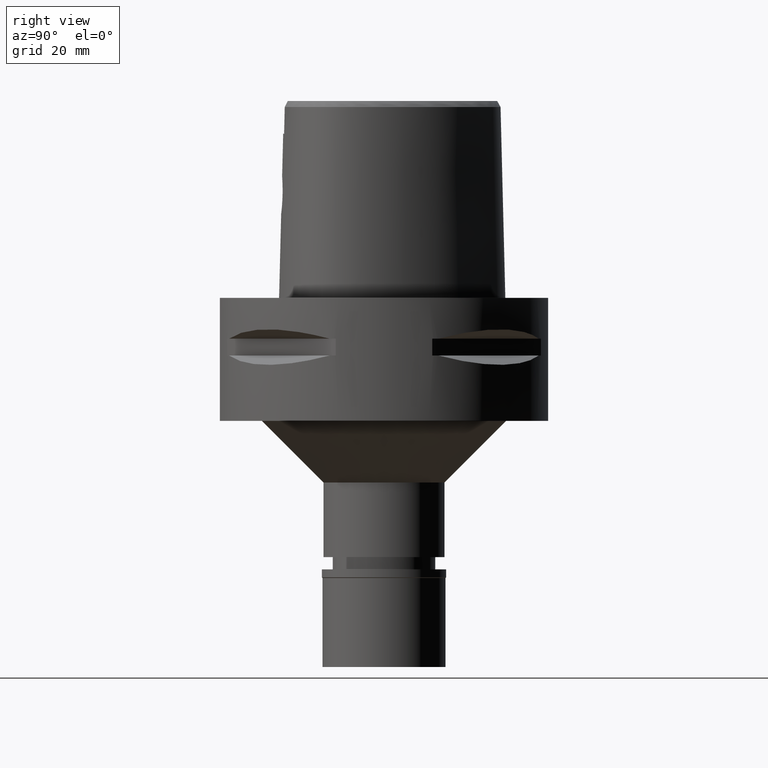
[diagram: clean part render]
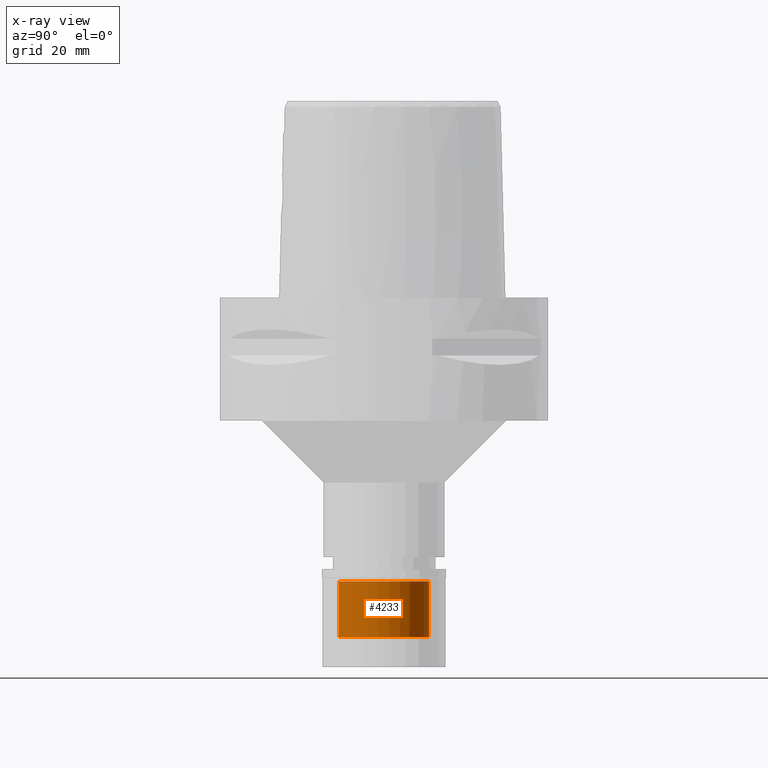
[diagram: x-ray — body ghosted, one internal face saturated and labeled with its STEP entity id]
A machine part, right view, then the same camera in x-ray: the body is ghosted and one INTERNAL B-rep face — a face not visible from any outside direction — is saturated and labeled: STEP entity #4233.
In plain terms, the highlighted cylindrical surface (partial cylindrical patch) has radius 11 mm, axis along (0, 0, -1).
Its self-contained STEP definition (entity closure, byte-faithful):
#111 = CARTESIAN_POINT ( 'NONE',  ( 0.0000000000000000000, -11.00000000000000000, -2.899999999999999911 ) ) ;
#258 = DIRECTION ( 'NONE',  ( 0.0000000000000000000, -1.000000000000000000, 0.0000000000000000000 ) ) ;
#290 = CARTESIAN_POINT ( 'NONE',  ( 0.0000000000000000000, 0.0000000000000000000, -2.899999999999999911 ) ) ;
#603 = DIRECTION ( 'NONE',  ( 0.0000000000000000000, 0.0000000000000000000, 1.000000000000000000 ) ) ;
#737 = EDGE_CURVE ( 'NONE', #1739, #3570, #790, .T. ) ;
#752 = VERTEX_POINT ( 'NONE', #3273 ) ;
#790 = CIRCLE ( 'NONE', #2083, 11.00000000000000000 ) ;
#813 = CARTESIAN_POINT ( 'NONE',  ( 0.0000000000000000000, 11.00000000000000000, -2.899999999999999911 ) ) ;
#878 = DIRECTION ( 'NONE',  ( 0.0000000000000000000, 0.0000000000000000000, -1.000000000000000000 ) ) ;
#914 = ORIENTED_EDGE ( 'NONE', *, *, #5032, .T. ) ;
#1094 = AXIS2_PLACEMENT_3D ( 'NONE', #2795, #878, #4287 ) ;
#1288 = DIRECTION ( 'NONE',  ( 0.0000000000000000000, 1.000000000000000000, 0.0000000000000000000 ) ) ;
#1667 = DIRECTION ( 'NONE',  ( 0.0000000000000000000, 0.0000000000000000000, 1.000000000000000000 ) ) ;
#1739 = VERTEX_POINT ( 'NONE', #111 ) ;
#1789 = EDGE_CURVE ( 'NONE', #752, #3365, #2180, .T. ) ;
#2022 = LINE ( 'NONE', #3192, #2700 ) ;
#2083 = AXIS2_PLACEMENT_3D ( 'NONE', #290, #603, #258 ) ;
#2180 = CIRCLE ( 'NONE', #3622, 11.00000000000000000 ) ;
#2234 = VECTOR ( 'NONE', #4637, 1000.000000000000000 ) ;
#2700 = VECTOR ( 'NONE', #1667, 1000.000000000000000 ) ;
#2795 = CARTESIAN_POINT ( 'NONE',  ( 0.0000000000000000000, 0.0000000000000000000, 0.0000000000000000000 ) ) ;
#3059 = ORIENTED_EDGE ( 'NONE', *, *, #1789, .T. ) ;
#3192 = CARTESIAN_POINT ( 'NONE',  ( 0.0000000000000000000, 11.00000000000000000, -16.50000000000000000 ) ) ;
#3229 = CARTESIAN_POINT ( 'NONE',  ( 0.0000000000000000000, 0.0000000000000000000, -16.50000000000000000 ) ) ;
#3273 = CARTESIAN_POINT ( 'NONE',  ( 0.0000000000000000000, 11.00000000000000000, -16.50000000000000000 ) ) ;
#3298 = EDGE_CURVE ( 'NONE', #752, #3570, #2022, .T. ) ;
#3365 = VERTEX_POINT ( 'NONE', #4146 ) ;
#3419 = CARTESIAN_POINT ( 'NONE',  ( 0.0000000000000000000, -11.00000000000000000, -16.50000000000000000 ) ) ;
#3570 = VERTEX_POINT ( 'NONE', #813 ) ;
#3622 = AXIS2_PLACEMENT_3D ( 'NONE', #3229, #4747, #1288 ) ;
#3649 = EDGE_LOOP ( 'NONE', ( #3059, #914, #4094, #4557 ) ) ;
#4094 = ORIENTED_EDGE ( 'NONE', *, *, #737, .T. ) ;
#4146 = CARTESIAN_POINT ( 'NONE',  ( 0.0000000000000000000, -11.00000000000000000, -16.50000000000000000 ) ) ;
#4177 = LINE ( 'NONE', #3419, #2234 ) ;
#4233 = ADVANCED_FACE ( 'NONE', ( #4652 ), #4721, .F. ) ;
#4287 = DIRECTION ( 'NONE',  ( 0.0000000000000000000, -1.000000000000000000, 0.0000000000000000000 ) ) ;
#4557 = ORIENTED_EDGE ( 'NONE', *, *, #3298, .F. ) ;
#4637 = DIRECTION ( 'NONE',  ( 0.0000000000000000000, 0.0000000000000000000, 1.000000000000000000 ) ) ;
#4652 = FACE_OUTER_BOUND ( 'NONE', #3649, .T. ) ;
#4721 = CYLINDRICAL_SURFACE ( 'NONE', #1094, 11.00000000000000000 ) ;
#4747 = DIRECTION ( 'NONE',  ( 0.0000000000000000000, 0.0000000000000000000, -1.000000000000000000 ) ) ;
#5032 = EDGE_CURVE ( 'NONE', #3365, #1739, #4177, .T. ) ;